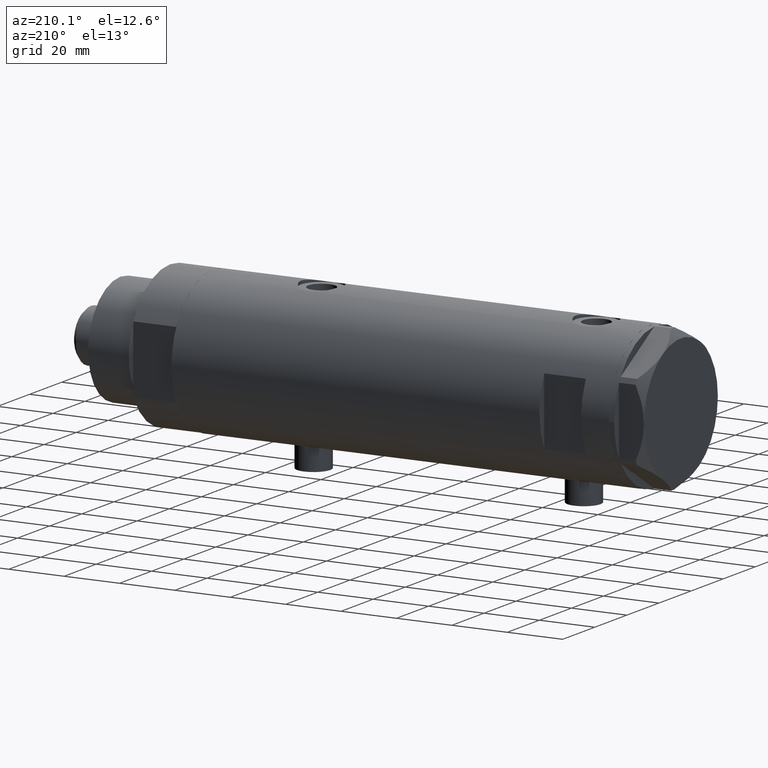
[diagram: clean part render]
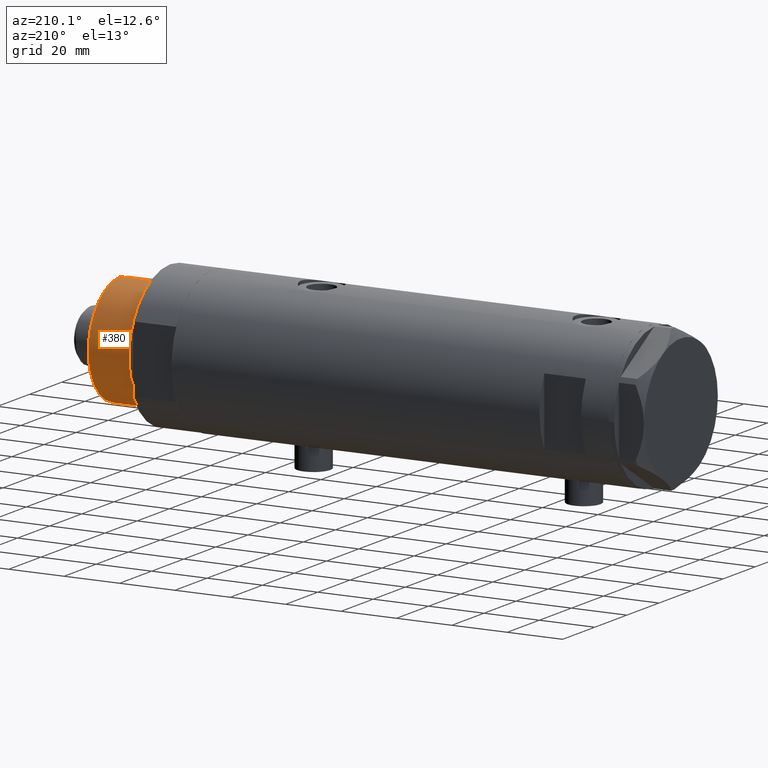
[diagram: same view with one face highlighted and labeled with its STEP entity id]
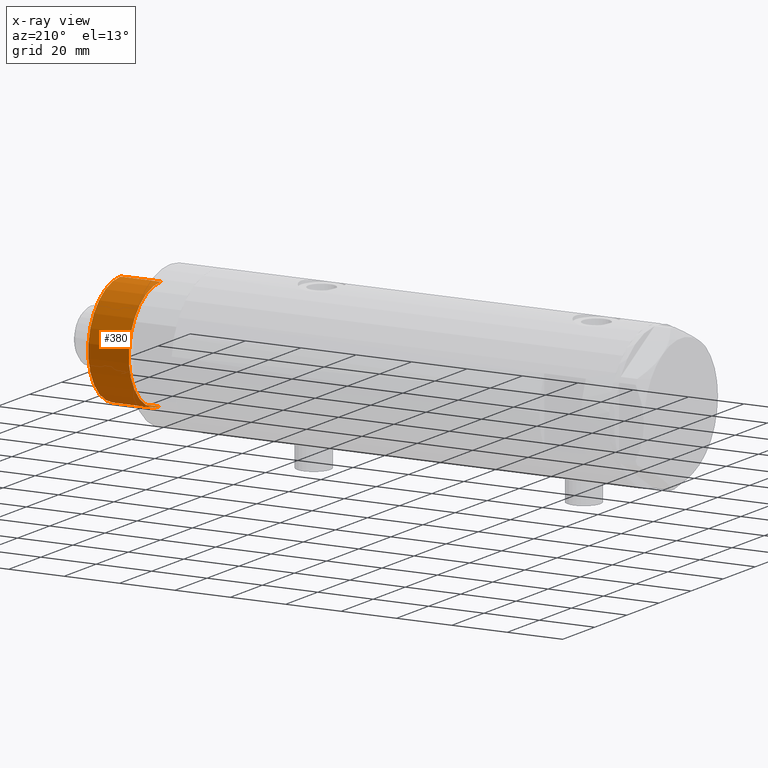
[diagram: x-ray of the same camera — body ghosted, the highlighted face saturated]
A machine part, auxiliary view. The second image highlights one B-rep face of the part: STEP entity #380.
The next image is the same camera in x-ray: the body ghosted, the highlighted face saturated — about 0% of this face is hidden behind the body in this view.
In plain terms, the highlighted cylindrical surface (partial cylindrical patch) has radius 20 mm, axis along (-1, -0, 0).
Its self-contained STEP definition (entity closure, byte-faithful):
#68 = VERTEX_POINT ( 'NONE', #3125 ) ;
#92 = AXIS2_PLACEMENT_3D ( 'NONE', #2273, #3375, #1913 ) ;
#204 = ORIENTED_EDGE ( 'NONE', *, *, #666, .T. ) ;
#380 = ADVANCED_FACE ( 'NONE', ( #1485 ), #1117, .T. ) ;
#412 = VECTOR ( 'NONE', #2545, 1000.000000000000000 ) ;
#514 = DIRECTION ( 'NONE',  ( 0.000000000000000000, 0.000000000000000000, 1.000000000000000000 ) ) ;
#666 = EDGE_CURVE ( 'NONE', #684, #4805, #2223, .T. ) ;
#684 = VERTEX_POINT ( 'NONE', #4439 ) ;
#735 = AXIS2_PLACEMENT_3D ( 'NONE', #3330, #736, #2562 ) ;
#736 = DIRECTION ( 'NONE',  ( -0.000000000000000000, -0.000000000000000000, -1.000000000000000000 ) ) ;
#1117 = CYLINDRICAL_SURFACE ( 'NONE', #735, 19.99999999999999645 ) ;
#1211 = ORIENTED_EDGE ( 'NONE', *, *, #1700, .F. ) ;
#1240 = EDGE_CURVE ( 'NONE', #4805, #4385, #2787, .T. ) ;
#1289 = CIRCLE ( 'NONE', #2238, 19.99999999999999645 ) ;
#1485 = FACE_OUTER_BOUND ( 'NONE', #4366, .T. ) ;
#1700 = EDGE_CURVE ( 'NONE', #684, #68, #1289, .T. ) ;
#1846 = CARTESIAN_POINT ( 'NONE',  ( -19.99999999999999645, 0.000000000000000000, 33.50000000000000000 ) ) ;
#1882 = CARTESIAN_POINT ( 'NONE',  ( -19.99999999999999645, 0.000000000000000000, 18.87384048104053846 ) ) ;
#1913 = DIRECTION ( 'NONE',  ( 1.000000000000000000, 0.000000000000000000, 0.000000000000000000 ) ) ;
#1957 = LINE ( 'NONE', #1846, #4660 ) ;
#2223 = LINE ( 'NONE', #3696, #412 ) ;
#2238 = AXIS2_PLACEMENT_3D ( 'NONE', #3863, #514, #4822 ) ;
#2273 = CARTESIAN_POINT ( 'NONE',  ( 0.000000000000000000, 0.000000000000000000, 18.87384048104053846 ) ) ;
#2313 = EDGE_CURVE ( 'NONE', #68, #4385, #1957, .T. ) ;
#2545 = DIRECTION ( 'NONE',  ( -0.000000000000000000, -0.000000000000000000, -1.000000000000000000 ) ) ;
#2562 = DIRECTION ( 'NONE',  ( -1.000000000000000000, 0.000000000000000000, 0.000000000000000000 ) ) ;
#2787 = CIRCLE ( 'NONE', #92, 19.99999999999999645 ) ;
#3125 = CARTESIAN_POINT ( 'NONE',  ( -19.99999999999999645, 0.000000000000000000, 33.50000000000000000 ) ) ;
#3330 = CARTESIAN_POINT ( 'NONE',  ( 0.000000000000000000, 0.000000000000000000, 33.50000000000000000 ) ) ;
#3375 = DIRECTION ( 'NONE',  ( -0.000000000000000000, -0.000000000000000000, 1.000000000000000000 ) ) ;
#3507 = ORIENTED_EDGE ( 'NONE', *, *, #2313, .F. ) ;
#3696 = CARTESIAN_POINT ( 'NONE',  ( 19.99999999999999645, 2.449293598294706119E-15, 33.50000000000000000 ) ) ;
#3820 = CARTESIAN_POINT ( 'NONE',  ( 19.99999999999999645, 2.449293598294706119E-15, 18.87384048104053846 ) ) ;
#3863 = CARTESIAN_POINT ( 'NONE',  ( 0.000000000000000000, 0.000000000000000000, 33.50000000000000000 ) ) ;
#4080 = ORIENTED_EDGE ( 'NONE', *, *, #1240, .T. ) ;
#4366 = EDGE_LOOP ( 'NONE', ( #1211, #204, #4080, #3507 ) ) ;
#4385 = VERTEX_POINT ( 'NONE', #1882 ) ;
#4439 = CARTESIAN_POINT ( 'NONE',  ( 19.99999999999999645, 2.449293598294706119E-15, 33.50000000000000000 ) ) ;
#4660 = VECTOR ( 'NONE', #4839, 1000.000000000000000 ) ;
#4805 = VERTEX_POINT ( 'NONE', #3820 ) ;
#4822 = DIRECTION ( 'NONE',  ( 1.000000000000000000, 0.000000000000000000, 0.000000000000000000 ) ) ;
#4839 = DIRECTION ( 'NONE',  ( -0.000000000000000000, -0.000000000000000000, -1.000000000000000000 ) ) ;